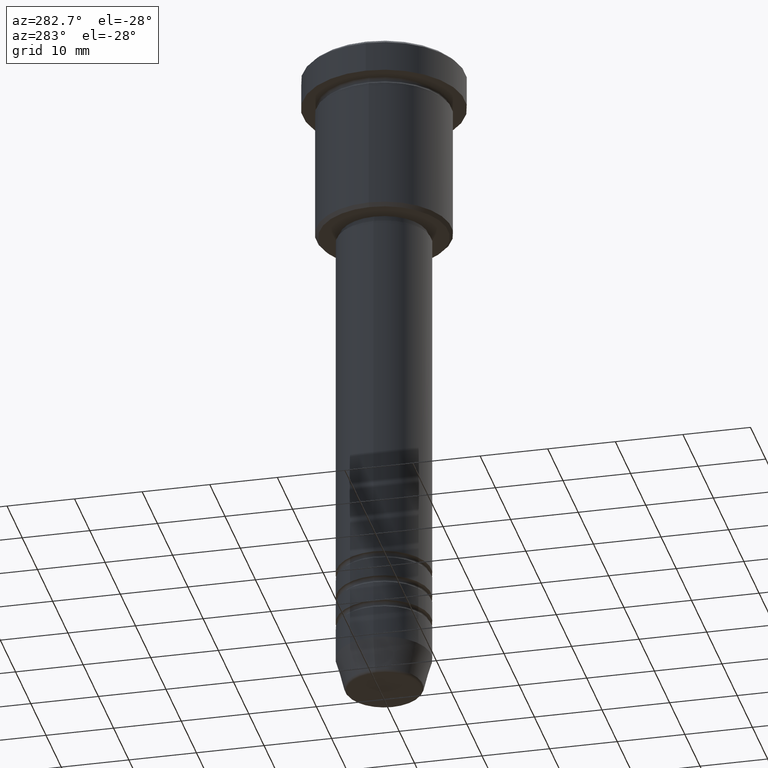
[diagram: clean part render]
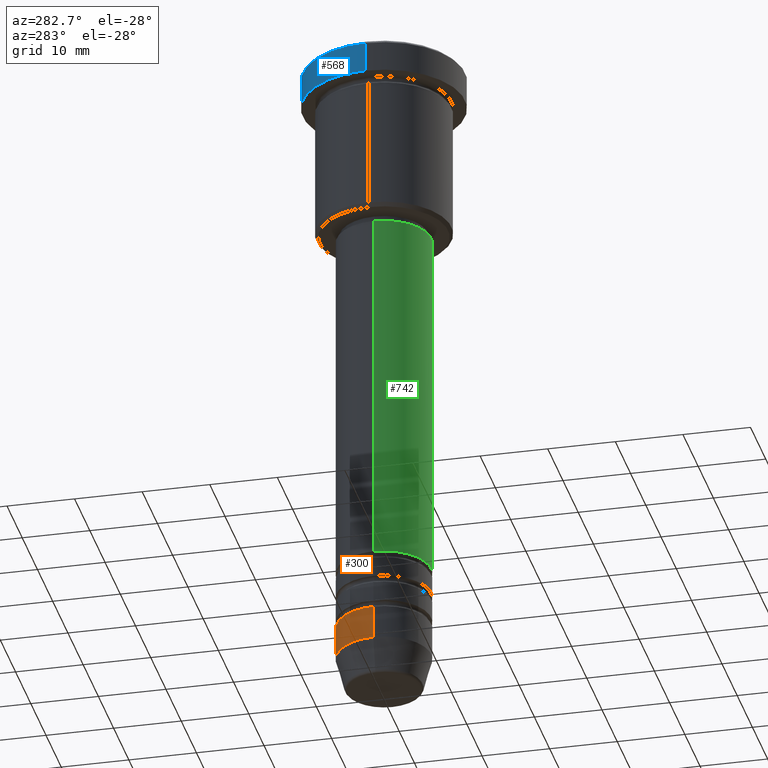
[diagram: same view with three faces highlighted in distinct colors, each labeled with its STEP entity id]
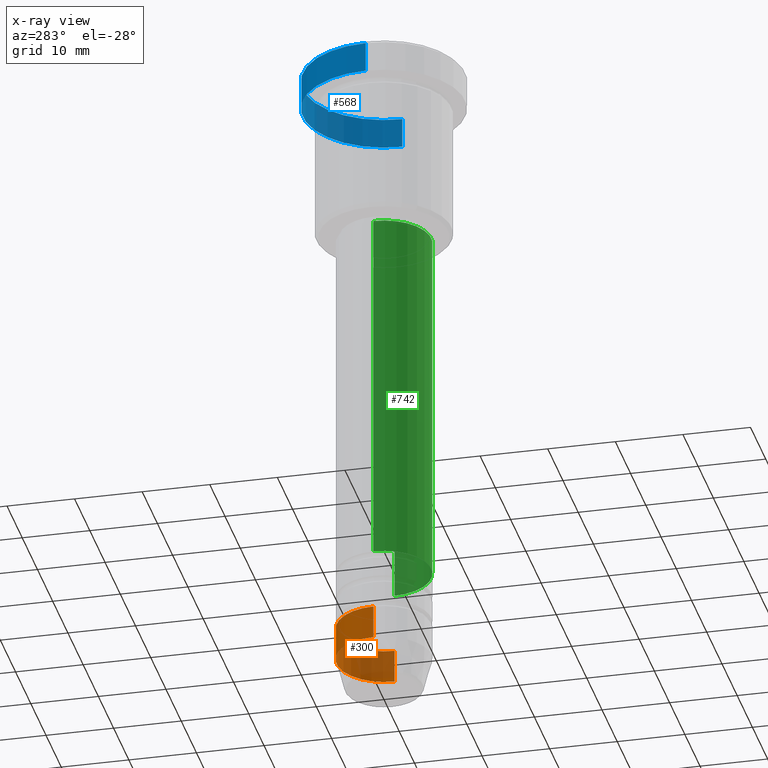
[diagram: x-ray of the same camera — body ghosted, the three highlighted faces saturated]
A machine part, auxiliary view with three faces highlighted in distinct colors.
The next image is the same camera in x-ray (body ghosted, the three faces saturated) — at least one of them is partly hidden behind the body in this view.
Their STEP definitions:

[orange] entity #300 — the highlighted cylindrical surface (partial cylindrical patch) has radius 7 mm, axis along (-0, -0, 1).
#53 = CIRCLE ( 'NONE', #654, 7.000000000000000000 ) ;
#65 = ORIENTED_EDGE ( 'NONE', *, *, #260, .T. ) ;
#99 = DIRECTION ( 'NONE',  ( 1.000000000000000000, 0.000000000000000000, 0.000000000000000000 ) ) ;
#127 = CIRCLE ( 'NONE', #834, 7.000000000000000888 ) ;
#132 = VERTEX_POINT ( 'NONE', #474 ) ;
#155 = CYLINDRICAL_SURFACE ( 'NONE', #702, 7.000000000000000888 ) ;
#160 = CARTESIAN_POINT ( 'NONE',  ( 0.000000000000000000, 0.000000000000000000, 0.000000000000000000 ) ) ;
#170 = VECTOR ( 'NONE', #1105, 1000.000000000000000 ) ;
#208 = VECTOR ( 'NONE', #1071, 1000.000000000000000 ) ;
#252 = DIRECTION ( 'NONE',  ( -0.000000000000000000, -0.000000000000000000, 1.000000000000000000 ) ) ;
#260 = EDGE_CURVE ( 'NONE', #1003, #132, #127, .T. ) ;
#266 = ORIENTED_EDGE ( 'NONE', *, *, #336, .F. ) ;
#300 = ADVANCED_FACE ( 'NONE', ( #973 ), #155, .T. ) ;
#332 = CARTESIAN_POINT ( 'NONE',  ( -7.000000000000000000, 8.572527594031473190E-16, -90.00000000000000000 ) ) ;
#336 = EDGE_CURVE ( 'NONE', #1003, #705, #344, .T. ) ;
#337 = DIRECTION ( 'NONE',  ( -0.000000000000000000, -0.000000000000000000, 1.000000000000000000 ) ) ;
#344 = LINE ( 'NONE', #711, #208 ) ;
#410 = CARTESIAN_POINT ( 'NONE',  ( 0.000000000000000000, 0.000000000000000000, -95.00000000000000000 ) ) ;
#474 = CARTESIAN_POINT ( 'NONE',  ( -7.000000000000000888, 8.572527594031474176E-16, -95.00000000000000000 ) ) ;
#643 = DIRECTION ( 'NONE',  ( -0.000000000000000000, -0.000000000000000000, 1.000000000000000000 ) ) ;
#654 = AXIS2_PLACEMENT_3D ( 'NONE', #1094, #643, #99 ) ;
#658 = CARTESIAN_POINT ( 'NONE',  ( -7.000000000000000888, 8.572527594031474176E-16, 0.000000000000000000 ) ) ;
#702 = AXIS2_PLACEMENT_3D ( 'NONE', #160, #252, #882 ) ;
#705 = VERTEX_POINT ( 'NONE', #1079 ) ;
#711 = CARTESIAN_POINT ( 'NONE',  ( 7.000000000000000888, 0.000000000000000000, 0.000000000000000000 ) ) ;
#718 = ORIENTED_EDGE ( 'NONE', *, *, #861, .T. ) ;
#734 = ORIENTED_EDGE ( 'NONE', *, *, #934, .F. ) ;
#801 = DIRECTION ( 'NONE',  ( 1.000000000000000000, 0.000000000000000000, 0.000000000000000000 ) ) ;
#822 = LINE ( 'NONE', #658, #170 ) ;
#834 = AXIS2_PLACEMENT_3D ( 'NONE', #410, #337, #801 ) ;
#861 = EDGE_CURVE ( 'NONE', #132, #1005, #822, .T. ) ;
#882 = DIRECTION ( 'NONE',  ( 1.000000000000000000, 0.000000000000000000, 0.000000000000000000 ) ) ;
#934 = EDGE_CURVE ( 'NONE', #705, #1005, #53, .T. ) ;
#945 = CARTESIAN_POINT ( 'NONE',  ( 7.000000000000000888, 0.000000000000000000, -95.00000000000000000 ) ) ;
#973 = FACE_OUTER_BOUND ( 'NONE', #995, .T. ) ;
#995 = EDGE_LOOP ( 'NONE', ( #65, #718, #734, #266 ) ) ;
#1003 = VERTEX_POINT ( 'NONE', #945 ) ;
#1005 = VERTEX_POINT ( 'NONE', #332 ) ;
#1071 = DIRECTION ( 'NONE',  ( -0.000000000000000000, -0.000000000000000000, 1.000000000000000000 ) ) ;
#1079 = CARTESIAN_POINT ( 'NONE',  ( 7.000000000000000000, 0.000000000000000000, -90.00000000000000000 ) ) ;
#1094 = CARTESIAN_POINT ( 'NONE',  ( 0.000000000000000000, 0.000000000000000000, -90.00000000000000000 ) ) ;
#1105 = DIRECTION ( 'NONE',  ( -0.000000000000000000, -0.000000000000000000, 1.000000000000000000 ) ) ;

[blue] entity #568 — the highlighted cylindrical surface (partial cylindrical patch) has radius 12 mm, axis along (-0, -0, 1).
#35 = DIRECTION ( 'NONE',  ( 1.000000000000000000, 0.000000000000000000, 0.000000000000000000 ) ) ;
#88 = CARTESIAN_POINT ( 'NONE',  ( -12.00000000000000000, 1.469576158976823947E-15, 0.000000000000000000 ) ) ;
#110 = VECTOR ( 'NONE', #432, 1000.000000000000000 ) ;
#122 = LINE ( 'NONE', #320, #669 ) ;
#141 = CARTESIAN_POINT ( 'NONE',  ( 0.000000000000000000, 0.000000000000000000, -5.000000000000000000 ) ) ;
#146 = EDGE_CURVE ( 'NONE', #367, #1012, #374, .T. ) ;
#148 = CYLINDRICAL_SURFACE ( 'NONE', #1044, 12.00000000000000000 ) ;
#168 = CIRCLE ( 'NONE', #326, 12.00000000000000000 ) ;
#178 = ORIENTED_EDGE ( 'NONE', *, *, #691, .T. ) ;
#215 = DIRECTION ( 'NONE',  ( 0.000000000000000000, 0.000000000000000000, -1.000000000000000000 ) ) ;
#241 = CARTESIAN_POINT ( 'NONE',  ( 0.000000000000000000, 0.000000000000000000, 0.000000000000000000 ) ) ;
#259 = EDGE_CURVE ( 'NONE', #888, #815, #168, .T. ) ;
#275 = CARTESIAN_POINT ( 'NONE',  ( -12.00000000000000000, 1.469576158976823947E-15, -5.000000000000000000 ) ) ;
#320 = CARTESIAN_POINT ( 'NONE',  ( 12.00000000000000000, 0.000000000000000000, 0.000000000000000000 ) ) ;
#326 = AXIS2_PLACEMENT_3D ( 'NONE', #141, #701, #981 ) ;
#367 = VERTEX_POINT ( 'NONE', #749 ) ;
#374 = CIRCLE ( 'NONE', #488, 12.00000000000000000 ) ;
#411 = ORIENTED_EDGE ( 'NONE', *, *, #259, .T. ) ;
#432 = DIRECTION ( 'NONE',  ( -0.000000000000000000, -0.000000000000000000, 1.000000000000000000 ) ) ;
#488 = AXIS2_PLACEMENT_3D ( 'NONE', #1034, #215, #572 ) ;
#568 = ADVANCED_FACE ( 'NONE', ( #696 ), #148, .T. ) ;
#572 = DIRECTION ( 'NONE',  ( 1.000000000000000000, 0.000000000000000000, 0.000000000000000000 ) ) ;
#640 = EDGE_LOOP ( 'NONE', ( #411, #178, #1056, #997 ) ) ;
#661 = CARTESIAN_POINT ( 'NONE',  ( 12.00000000000000000, 0.000000000000000000, -5.000000000000000000 ) ) ;
#669 = VECTOR ( 'NONE', #1048, 1000.000000000000000 ) ;
#691 = EDGE_CURVE ( 'NONE', #815, #367, #1154, .T. ) ;
#696 = FACE_OUTER_BOUND ( 'NONE', #640, .T. ) ;
#701 = DIRECTION ( 'NONE',  ( -0.000000000000000000, -0.000000000000000000, 1.000000000000000000 ) ) ;
#749 = CARTESIAN_POINT ( 'NONE',  ( -12.00000000000000000, 1.469576158976823947E-15, -0.5000000000000196509 ) ) ;
#771 = CARTESIAN_POINT ( 'NONE',  ( 12.00000000000000000, 0.000000000000000000, -0.5000000000000196509 ) ) ;
#815 = VERTEX_POINT ( 'NONE', #275 ) ;
#888 = VERTEX_POINT ( 'NONE', #661 ) ;
#952 = DIRECTION ( 'NONE',  ( -0.000000000000000000, -0.000000000000000000, 1.000000000000000000 ) ) ;
#968 = EDGE_CURVE ( 'NONE', #888, #1012, #122, .T. ) ;
#981 = DIRECTION ( 'NONE',  ( 1.000000000000000000, 0.000000000000000000, 0.000000000000000000 ) ) ;
#997 = ORIENTED_EDGE ( 'NONE', *, *, #968, .F. ) ;
#1012 = VERTEX_POINT ( 'NONE', #771 ) ;
#1034 = CARTESIAN_POINT ( 'NONE',  ( 0.000000000000000000, 0.000000000000000000, -0.5000000000000196509 ) ) ;
#1044 = AXIS2_PLACEMENT_3D ( 'NONE', #241, #952, #35 ) ;
#1048 = DIRECTION ( 'NONE',  ( -0.000000000000000000, -0.000000000000000000, 1.000000000000000000 ) ) ;
#1056 = ORIENTED_EDGE ( 'NONE', *, *, #146, .T. ) ;
#1154 = LINE ( 'NONE', #88, #110 ) ;

[green] entity #742 — the highlighted cylindrical surface (partial cylindrical patch) has radius 7 mm, axis along (-0, -0, 1).
#6 = ORIENTED_EDGE ( 'NONE', *, *, #558, .T. ) ;
#31 = CARTESIAN_POINT ( 'NONE',  ( -7.000000000000000888, 8.572527594031474176E-16, 0.000000000000000000 ) ) ;
#48 = DIRECTION ( 'NONE',  ( -0.000000000000000000, -0.000000000000000000, 1.000000000000000000 ) ) ;
#57 = DIRECTION ( 'NONE',  ( 1.000000000000000000, 0.000000000000000000, 0.000000000000000000 ) ) ;
#78 = DIRECTION ( 'NONE',  ( -0.000000000000000000, -0.000000000000000000, 1.000000000000000000 ) ) ;
#79 = CARTESIAN_POINT ( 'NONE',  ( -7.000000000000000888, 8.572527594031474176E-16, -26.99999999999999645 ) ) ;
#89 = VECTOR ( 'NONE', #622, 1000.000000000000000 ) ;
#105 = ORIENTED_EDGE ( 'NONE', *, *, #1075, .F. ) ;
#176 = CARTESIAN_POINT ( 'NONE',  ( -7.000000000000000888, 8.572527594031474176E-16, -80.99999999999998579 ) ) ;
#182 = ORIENTED_EDGE ( 'NONE', *, *, #961, .F. ) ;
#239 = LINE ( 'NONE', #31, #1045 ) ;
#263 = DIRECTION ( 'NONE',  ( 1.000000000000000000, 0.000000000000000000, 0.000000000000000000 ) ) ;
#290 = AXIS2_PLACEMENT_3D ( 'NONE', #869, #48, #57 ) ;
#293 = CIRCLE ( 'NONE', #290, 7.000000000000000888 ) ;
#317 = DIRECTION ( 'NONE',  ( 1.000000000000000000, 0.000000000000000000, 0.000000000000000000 ) ) ;
#369 = CARTESIAN_POINT ( 'NONE',  ( 7.000000000000000888, 0.000000000000000000, -80.99999999999998579 ) ) ;
#401 = EDGE_CURVE ( 'NONE', #864, #1053, #810, .T. ) ;
#441 = EDGE_LOOP ( 'NONE', ( #182, #6, #623, #105 ) ) ;
#460 = VERTEX_POINT ( 'NONE', #79 ) ;
#558 = EDGE_CURVE ( 'NONE', #746, #864, #668, .T. ) ;
#619 = FACE_OUTER_BOUND ( 'NONE', #441, .T. ) ;
#622 = DIRECTION ( 'NONE',  ( -0.000000000000000000, -0.000000000000000000, 1.000000000000000000 ) ) ;
#623 = ORIENTED_EDGE ( 'NONE', *, *, #401, .T. ) ;
#668 = CIRCLE ( 'NONE', #814, 7.000000000000000888 ) ;
#695 = DIRECTION ( 'NONE',  ( -0.000000000000000000, -0.000000000000000000, 1.000000000000000000 ) ) ;
#742 = ADVANCED_FACE ( 'NONE', ( #619 ), #889, .T. ) ;
#746 = VERTEX_POINT ( 'NONE', #176 ) ;
#753 = CARTESIAN_POINT ( 'NONE',  ( 7.000000000000000888, 0.000000000000000000, 0.000000000000000000 ) ) ;
#786 = CARTESIAN_POINT ( 'NONE',  ( 0.000000000000000000, 0.000000000000000000, -80.99999999999998579 ) ) ;
#810 = LINE ( 'NONE', #753, #89 ) ;
#814 = AXIS2_PLACEMENT_3D ( 'NONE', #786, #866, #317 ) ;
#864 = VERTEX_POINT ( 'NONE', #369 ) ;
#866 = DIRECTION ( 'NONE',  ( -0.000000000000000000, -0.000000000000000000, 1.000000000000000000 ) ) ;
#869 = CARTESIAN_POINT ( 'NONE',  ( 0.000000000000000000, 0.000000000000000000, -26.99999999999999645 ) ) ;
#889 = CYLINDRICAL_SURFACE ( 'NONE', #1178, 7.000000000000000888 ) ;
#950 = CARTESIAN_POINT ( 'NONE',  ( 7.000000000000000888, 0.000000000000000000, -26.99999999999999645 ) ) ;
#961 = EDGE_CURVE ( 'NONE', #746, #460, #239, .T. ) ;
#983 = CARTESIAN_POINT ( 'NONE',  ( 0.000000000000000000, 0.000000000000000000, 0.000000000000000000 ) ) ;
#1045 = VECTOR ( 'NONE', #695, 1000.000000000000000 ) ;
#1053 = VERTEX_POINT ( 'NONE', #950 ) ;
#1075 = EDGE_CURVE ( 'NONE', #460, #1053, #293, .T. ) ;
#1178 = AXIS2_PLACEMENT_3D ( 'NONE', #983, #78, #263 ) ;